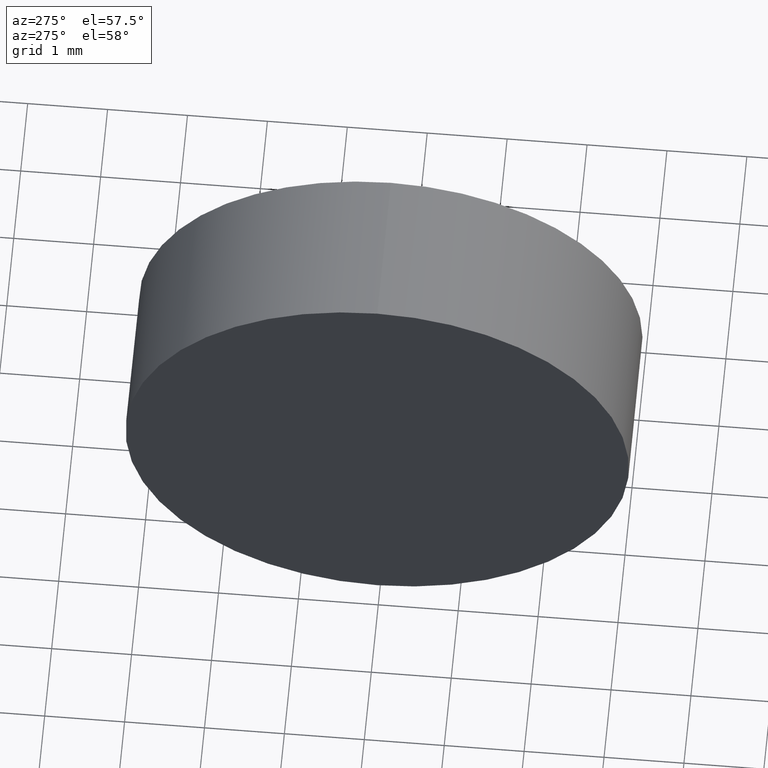
[diagram: clean part render]
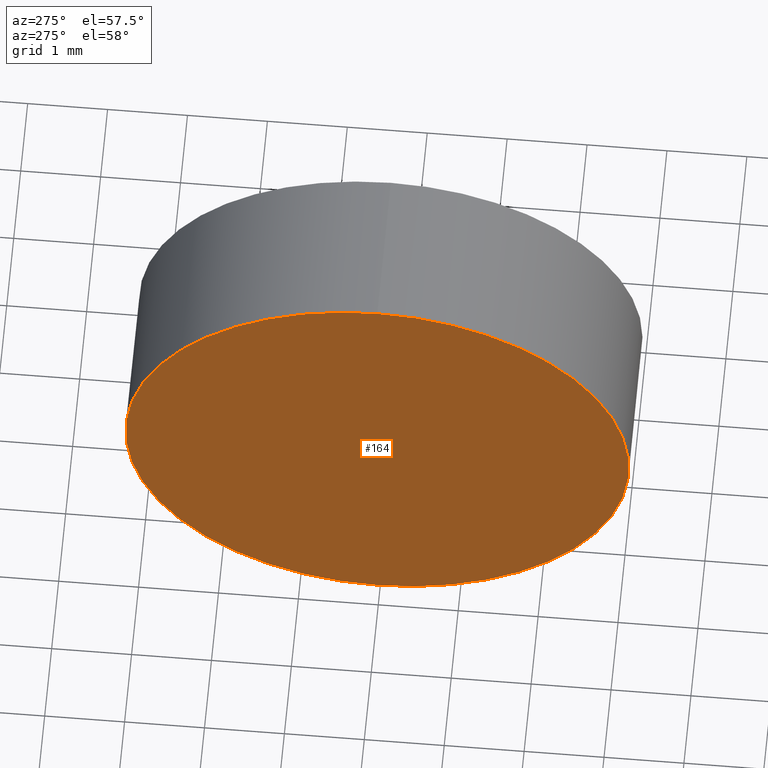
[diagram: same view with one face highlighted and labeled with its STEP entity id]
A machine part, auxiliary view. The second image highlights one B-rep face of the part: STEP entity #164.
In plain terms, the highlighted planar face has unit normal (1, 0, 0).
Its self-contained STEP definition (entity closure, byte-faithful):
#1 = CIRCLE ( 'NONE', #122, 3.149999999999998100 ) ;
#16 = DIRECTION ( 'NONE',  ( 1.000000000000000000, 0.0000000000000000000, 0.0000000000000000000 ) ) ;
#35 = DIRECTION ( 'NONE',  ( 0.0000000000000000000, 0.0000000000000000000, 1.000000000000000000 ) ) ;
#59 = DIRECTION ( 'NONE',  ( 0.0000000000000000000, 0.0000000000000000000, 1.000000000000000000 ) ) ;
#62 = CARTESIAN_POINT ( 'NONE',  ( 22.20087548928661300, 13.03112609140304000, 0.0000000000000000000 ) ) ;
#71 = FACE_OUTER_BOUND ( 'NONE', #108, .T. ) ;
#90 = VERTEX_POINT ( 'NONE', #178 ) ;
#106 = CARTESIAN_POINT ( 'NONE',  ( 22.20087548928661300, 13.03112609140304000, 0.0000000000000000000 ) ) ;
#108 = EDGE_LOOP ( 'NONE', ( #113, #127 ) ) ;
#113 = ORIENTED_EDGE ( 'NONE', *, *, #182, .T. ) ;
#114 = DIRECTION ( 'NONE',  ( 0.0000000000000000000, 0.0000000000000000000, -1.000000000000000000 ) ) ;
#122 = AXIS2_PLACEMENT_3D ( 'NONE', #62, #169, #59 ) ;
#123 = CARTESIAN_POINT ( 'NONE',  ( 22.20087548928661300, 13.03112609140304000, 3.149999999999998100 ) ) ;
#127 = ORIENTED_EDGE ( 'NONE', *, *, #153, .T. ) ;
#135 = AXIS2_PLACEMENT_3D ( 'NONE', #161, #16, #114 ) ;
#137 = PLANE ( 'NONE',  #135 ) ;
#138 = DIRECTION ( 'NONE',  ( -1.000000000000000000, -0.0000000000000000000, -0.0000000000000000000 ) ) ;
#148 = CIRCLE ( 'NONE', #181, 3.149999999999998100 ) ;
#153 = EDGE_CURVE ( 'NONE', #90, #154, #148, .T. ) ;
#154 = VERTEX_POINT ( 'NONE', #123 ) ;
#161 = CARTESIAN_POINT ( 'NONE',  ( 22.20087548928661300, 13.03112609140304000, 0.0000000000000000000 ) ) ;
#164 = ADVANCED_FACE ( 'NONE', ( #71 ), #137, .F. ) ;
#169 = DIRECTION ( 'NONE',  ( -1.000000000000000000, -0.0000000000000000000, -0.0000000000000000000 ) ) ;
#178 = CARTESIAN_POINT ( 'NONE',  ( 22.20087548928661300, 13.03112609140304000, -3.149999999999998100 ) ) ;
#181 = AXIS2_PLACEMENT_3D ( 'NONE', #106, #138, #35 ) ;
#182 = EDGE_CURVE ( 'NONE', #154, #90, #1, .T. ) ;